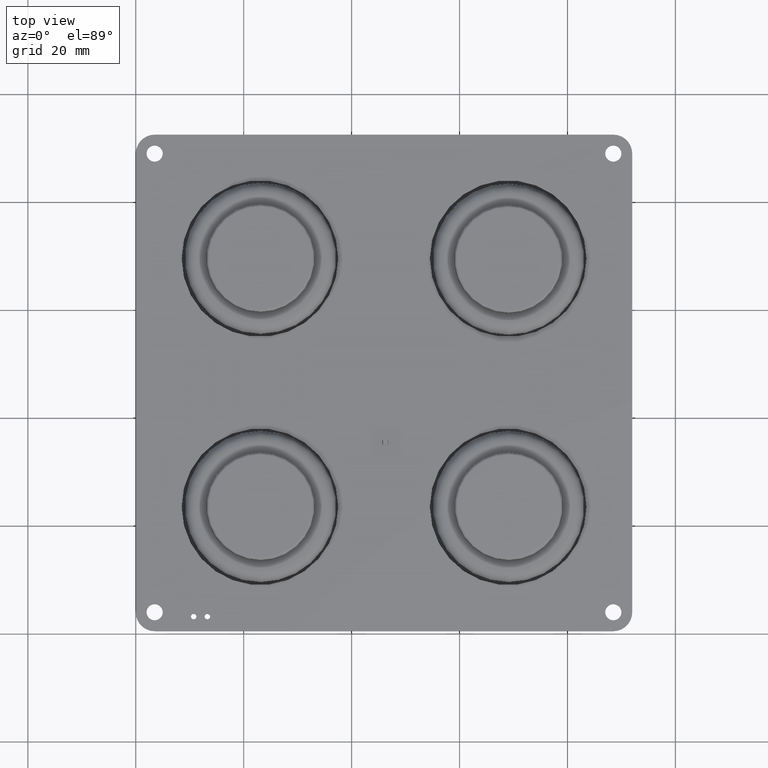
[diagram: clean part render]
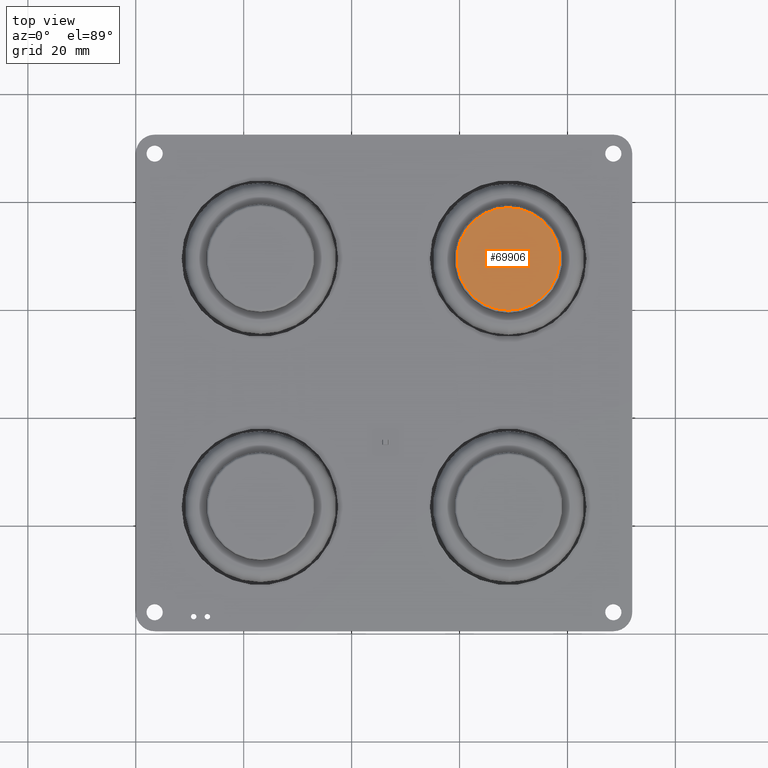
[diagram: same view with one face highlighted and labeled with its STEP entity id]
A machine part, top view. The second image highlights one B-rep face of the part: STEP entity #69906.
In plain terms, the highlighted planar face has unit normal (0, -0, 1).
Its self-contained STEP definition (entity closure, byte-faithful):
#67904 = EDGE_CURVE('',#67905,#67907,#67909,.T.);
#67905 = VERTEX_POINT('',#67906);
#67906 = CARTESIAN_POINT('',(0.,34.,-9.5));
#67907 = VERTEX_POINT('',#67908);
#67908 = CARTESIAN_POINT('',(1.194030629169E-15,34.,9.5));
#67909 = CIRCLE('',#67910,9.5);
#67910 = AXIS2_PLACEMENT_3D('',#67911,#67912,#67913);
#67911 = CARTESIAN_POINT('',(0.,34.,0.));
#67912 = DIRECTION('',(0.,-1.,-0.));
#67913 = DIRECTION('',(0.,0.,-1.));
#69906 = ADVANCED_FACE('',(#69907),#69917,.T.);
#69907 = FACE_BOUND('',#69908,.T.);
#69908 = EDGE_LOOP('',(#69909,#69910));
#69909 = ORIENTED_EDGE('',*,*,#67904,.F.);
#69910 = ORIENTED_EDGE('',*,*,#69911,.F.);
#69911 = EDGE_CURVE('',#67907,#67905,#69912,.T.);
#69912 = CIRCLE('',#69913,9.5);
#69913 = AXIS2_PLACEMENT_3D('',#69914,#69915,#69916);
#69914 = CARTESIAN_POINT('',(0.,34.,0.));
#69915 = DIRECTION('',(0.,-1.,-0.));
#69916 = DIRECTION('',(0.,0.,-1.));
#69917 = PLANE('',#69918);
#69918 = AXIS2_PLACEMENT_3D('',#69919,#69920,#69921);
#69919 = CARTESIAN_POINT('',(0.,34.,0.));
#69920 = DIRECTION('',(0.,1.,0.));
#69921 = DIRECTION('',(0.,-0.,1.));